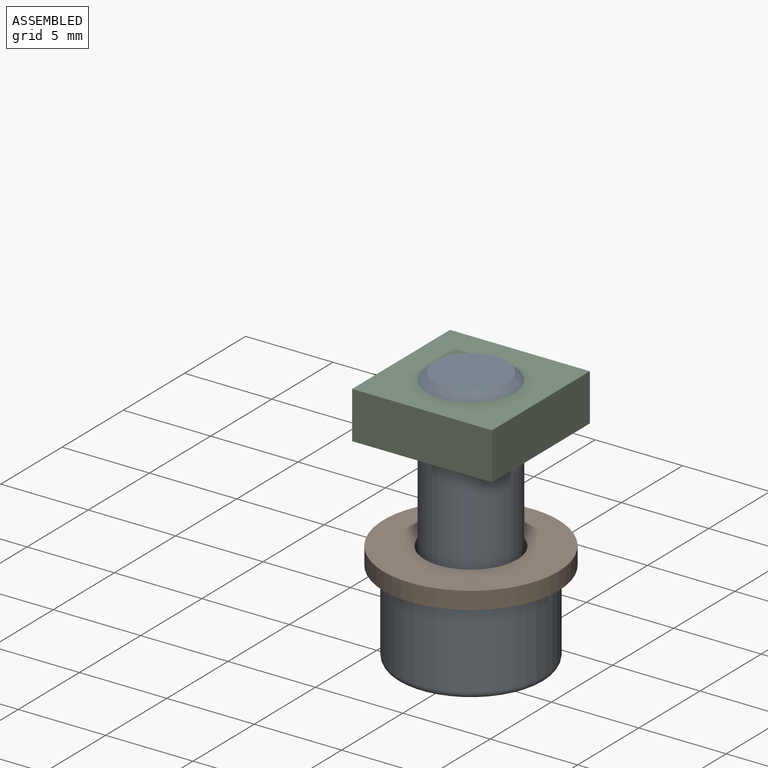
[diagram: assembled view]
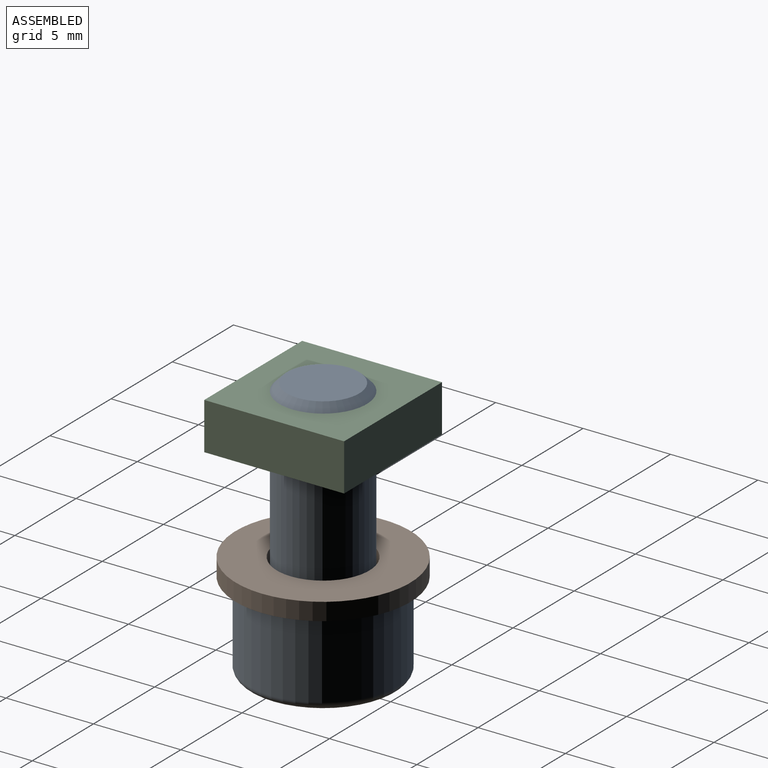
[diagram: assembled view, second angle]
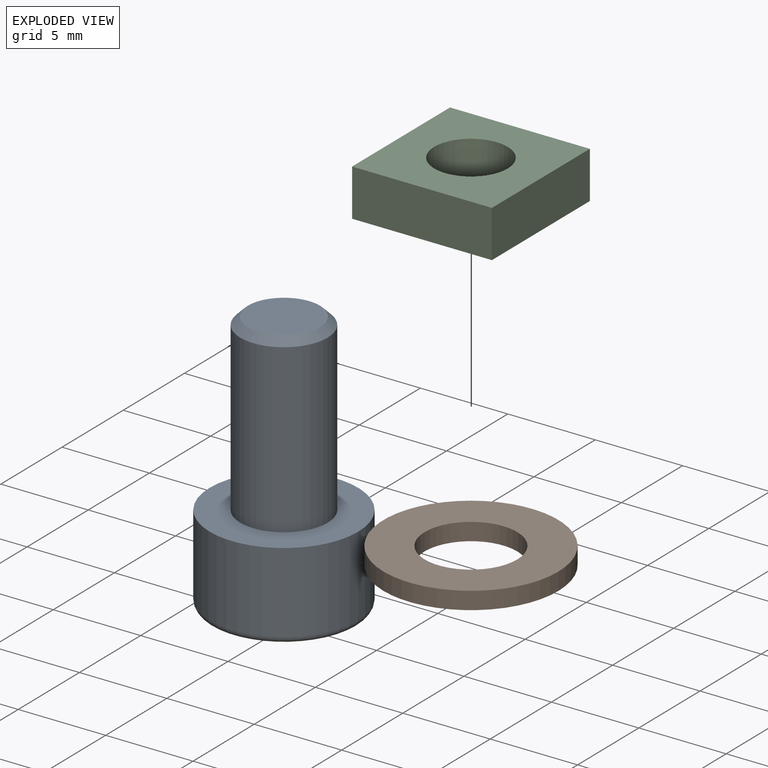
[diagram: exploded view]
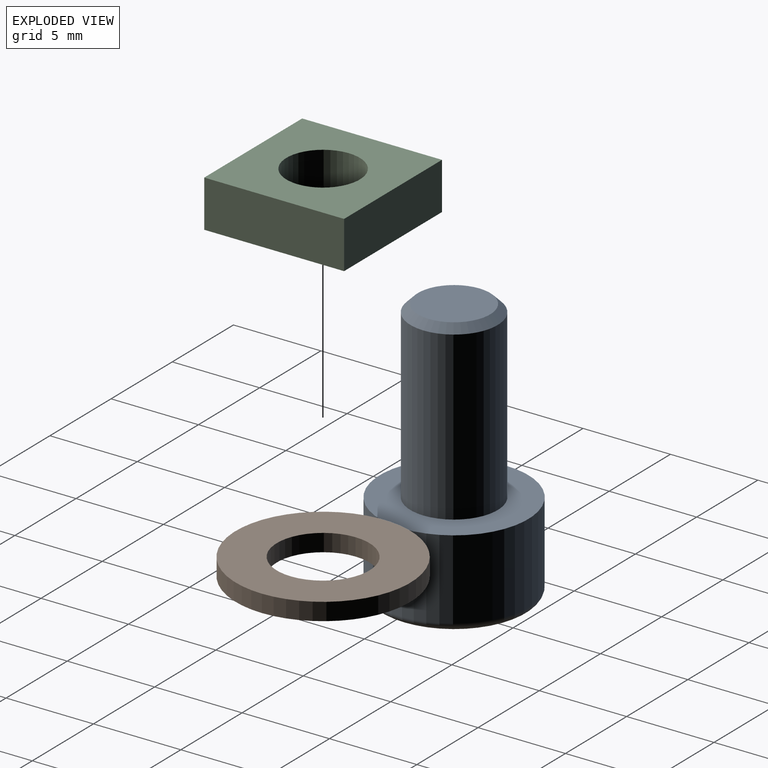
[diagram: exploded view, second angle]
ASSEMBLY  parts=3 mates=4
PART A: 14 faces, bbox 9.2x9.2x15 mm
  f0: plane 7.65x7.65mm, normal (0,0,-1), area 31.4mm2, adj f3,f4,f5,f6,f7,f8,f9
  f1: cylinder r=4.25mm len=8.5mm, axis (0,0,1), area 122.2mm2, adj f2,f3
  f2: plane 8.5x8.5mm, normal (0,0,1), area 37.1mm2, adj f1,f11
  f3: torus R=3.82mm, axis (0,0,-1), area 17.2mm2, adj f0,f1
  f4: plane 2.5x2.36mm, normal (-1,0,0), area 5.9mm2, adj f0,f5,f9,f10
  f5: plane 2.5x2.05mm, normal (-0.5,-0.87,0), area 5.9mm2, adj f0,f4,f6,f10
  f6: plane 2.5x2.05mm, normal (0.5,-0.87,0), area 5.9mm2, adj f0,f5,f7,f10
  f7: plane 2.5x2.36mm, normal (1,0,0), area 5.9mm2, adj f0,f6,f8,f10
  f8: plane 2.5x2.05mm, normal (0.5,0.87,0), area 5.9mm2, adj f0,f7,f9,f10
  f9: plane 2.5x2.05mm, normal (-0.5,0.87,0), area 5.9mm2, adj f0,f4,f8,f10
  f10: plane 4.73x4.1mm, normal (0,0,-1), area 14.5mm2, adj f4,f5,f6,f7,f8,f9
  f11: cylinder r=2.5mm len=9.57mm, axis (0,0,-1), area 150.3mm2, adj f2,f13
  f12: plane 4.13x4.13mm, normal (0,0,1), area 13.4mm2, adj f13
  f13: cone r=2.07mm half-angle=45deg, axis (0,0,-1), area 8.8mm2, adj f11,f12
PART B: 4 faces, bbox 10x10x1 mm
  f0: cylinder r=2.65mm len=5.3mm, axis (0,0,-1), area 16.7mm2, adj f2,f3
  f1: cylinder r=5mm len=10mm, axis (0,0,-1), area 31.4mm2, adj f2,f3
  f2: plane 10x10mm, normal (0,0,1), area 56.5mm2, adj f0,f1
  f3: plane 10x10mm, normal (0,0,-1), area 56.5mm2, adj f0,f1
PART C: 7 faces, bbox 8x8x2.7 mm
  f0: plane 8x2.7mm, normal (0,-1,0), area 21.6mm2, adj f1,f4,f5,f6
  f1: plane 8x2.7mm, normal (1,0,0), area 21.6mm2, adj f0,f2,f5,f6
  f2: plane 8x2.7mm, normal (0,1,0), area 21.6mm2, adj f1,f4,f5,f6
  f3: cylinder r=2.1mm len=4.2mm, axis (0,0,-1), area 35.6mm2, adj f5,f6
  f4: plane 8x2.7mm, normal (-1,0,0), area 21.6mm2, adj f0,f2,f5,f6
  f5: plane 8x8mm, normal (0,0,1), area 50.1mm2, adj f0,f1,f2,f3,f4
  f6: plane 8x8mm, normal (0,0,-1), area 50.1mm2, adj f0,f1,f2,f3,f4
PLACE A t=(-35.27,20.95,15.5)mm
PLACE B t=(4.73,30.95,15.5)mm
PLACE C t=(-5.27,40.95,22.36)mm
MATE cylindrical A.f1 <-> C.f3  axis (0,0,-1) through (-5.27,20.95,20.28)mm
MATE cylindrical B.f0 <-> A.f1  axis (0,0,-1) through (-5.27,20.95,16)mm
MATE planar C.f3 <-> A.f1  axis (0,0,1) through (-5.27,20.95,25.06)mm
MATE planar B.f0 <-> A.f1  axis (0,0,-1) through (-5.27,20.95,15.5)mm
